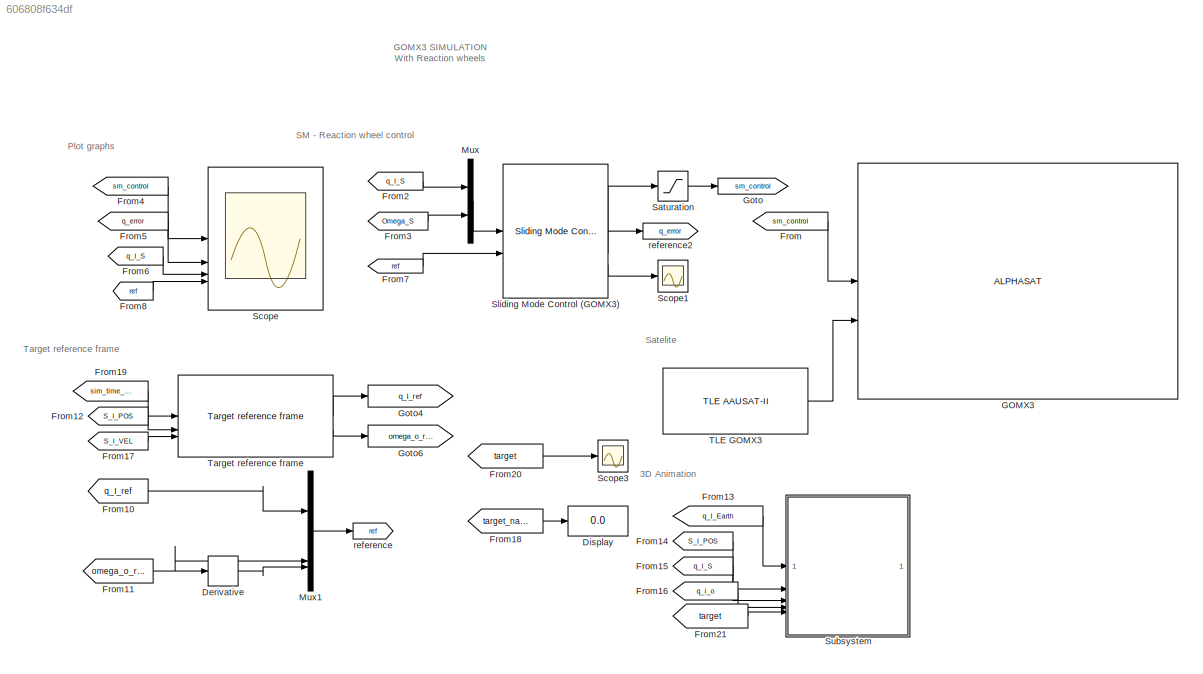
MODEL slx_606808f634df
KIND model
CONFIG AbsTol = auto
CONFIG EnableMultiTasking = on
CONFIG FixedStep = auto
CONFIG MaxStep = auto
CONFIG MinStep = auto
CONFIG RelTol = 1e-3
CONFIG SampleTimeConstraint = Unconstrained
CONFIG SolverName = VariableStepAuto
CONFIG StartTime = 0.0
CONFIG StopTime = 1000
WORKSPACE source: external: MAT-File  (data not in archive)
BLOCK [Derivative] Derivative
BLOCK [Display] Display
  Decimation = 1
BLOCK [From] From
  GotoTag = sm_control
BLOCK [From] From10
  GotoTag = q_I_ref
  TagVisibility = global
BLOCK [From] From11
  GotoTag = omega_o_ref
  TagVisibility = global
BLOCK [From] From12
  GotoTag = S_I_POS
  TagVisibility = global
BLOCK [From] From13
  CloseFcn = tagdialog Close
  GotoTag = q_I_Earth
  TagVisibility = global
BLOCK [From] From14
  GotoTag = S_I_POS
  TagVisibility = global
BLOCK [From] From15
  GotoTag = q_I_S
  TagVisibility = global
BLOCK [From] From16
  GotoTag = q_i_o
  TagVisibility = global
BLOCK [From] From17
  GotoTag = S_I_VEL
  TagVisibility = global
BLOCK [From] From18
  GotoTag = target_name
  TagVisibility = global
BLOCK [From] From19
  GotoTag = sim_time_JD
  TagVisibility = global
BLOCK [From] From2
  GotoTag = q_I_S
  TagVisibility = global
BLOCK [From] From20
  GotoTag = target
  TagVisibility = global
BLOCK [From] From21
  GotoTag = target
  TagVisibility = global
BLOCK [From] From3
  GotoTag = Omega_S
  TagVisibility = global
BLOCK [From] From4
  GotoTag = sm_control
BLOCK [From] From5
  GotoTag = q_error
BLOCK [From] From6
  GotoTag = q_I_S
  TagVisibility = global
BLOCK [From] From7
  GotoTag = ref
BLOCK [From] From8
  GotoTag = ref
BLOCK [Reference] GOMX3  REF=aausat3_lib/ALPHASAT  (lib defined in mdl_4157f6465749, slx_d9305f96731e)
  SourceBlock = aausat3_lib/ALPHASAT
  SourceProductName = AAUSAT3
BLOCK [Goto] Goto
  GotoTag = sm_control
BLOCK [Goto] Goto4
  GotoTag = q_I_ref
  TagVisibility = global
BLOCK [Goto] Goto6
  GotoTag = omega_o_ref
  TagVisibility = global
BLOCK [Mux] Mux
  DisplayOption = bar
  Inputs = 2
BLOCK [Mux] Mux1
  DisplayOption = bar
BLOCK [Saturate] Saturation
  LowerLimit = -23e-6
  UpperLimit = 23e-6
BLOCK [Scope] Scope
  Floating = off
  NumInputPorts = 4
  ScopeSpecificationString = Simulink.scopes.TimeScopeBlockCfg('CurrentConfiguration', extmgr.ConfigurationSet(extmgr.Configuration('Core','General UI',true),extmgr.Configuration('Core','Source UI',true),extmgr.Configuration('Sources','WiredSimulink',true,'DataLoggingVariableName','ScopeData1'),extmgr.Configuration('Visuals','Time Domain',true,'SerializedDisplays',{struct('MinYLimReal','-0.000029','MaxYLimReal','0.000029','YL...<+3778ch>
BLOCK [Scope] Scope1
  Floating = off
  NumInputPorts = 1
  ScopeSpecificationString = Simulink.scopes.TimeScopeBlockCfg('CurrentConfiguration', extmgr.ConfigurationSet(extmgr.Configuration('Core','General UI',true),extmgr.Configuration('Core','Source UI',true),extmgr.Configuration('Sources','WiredSimulink',true,'DataLoggingVariableName','ScopeData1','DataLoggingLimitDataPoints',true,'DataLoggingSaveFormat','Array','DataLoggingDecimation','1','DataLoggingDecimateData',true),extmgr.C...<+1615ch>
BLOCK [Scope] Scope3
  Floating = off
  NumInputPorts = 1
  ScopeSpecificationString = Simulink.scopes.TimeScopeBlockCfg('CurrentConfiguration', extmgr.ConfigurationSet(extmgr.Configuration('Core','General UI',true),extmgr.Configuration('Core','Source UI',true),extmgr.Configuration('Sources','WiredSimulink',true,'DataLoggingVariableName','ScopeData2'),extmgr.Configuration('Visuals','Time Domain',true,'SerializedDisplays',{struct('MinYLimReal','-6465076.1905','MaxYLimReal','4656929.5...<+1884ch>
BLOCK [Reference] Sliding Mode Control (GOMX3)  REF=aausat3_lib/ACS/Sliding Mode Control  (lib defined in mdl_4157f6465749, slx_d9305f96731e)
(GOMX3)
  SourceBlock = aausat3_lib/ACS/Sliding Mode Control\n(GOMX3)
  SourceProductName = AAUSAT3
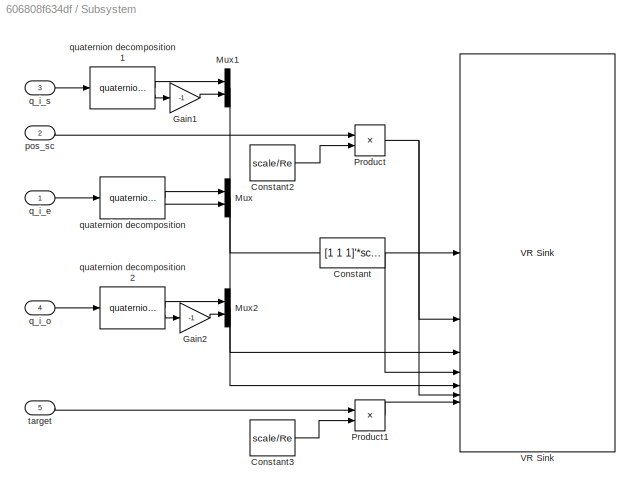
BLOCK [SubSystem] Subsystem
BLOCK [Constant] Subsystem/Constant
  Value = [1 1 1]'*scale
BLOCK [Constant] Subsystem/Constant2
  Value = scale/Re
BLOCK [Constant] Subsystem/Constant3
  Value = scale/Re
BLOCK [Gain] Subsystem/Gain1
  Gain = -1
BLOCK [Gain] Subsystem/Gain2
  Gain = -1
BLOCK [Mux] Subsystem/Mux
  DisplayOption = bar
  Inputs = 2
BLOCK [Mux] Subsystem/Mux1
  DisplayOption = bar
  Inputs = 2
BLOCK [Mux] Subsystem/Mux2
  DisplayOption = bar
  Inputs = 2
BLOCK [Product] Subsystem/Product
BLOCK [Product] Subsystem/Product1
BLOCK [Reference] Subsystem/VR Sink  REF=vrlib/VR Sink
  InstantiateOnLoad = on
  SourceBlock = vrlib/VR Sink
  SourceType = Virtual Reality Sink
BLOCK [Inport] Subsystem/pos_sc
  Port = 2
BLOCK [Inport] Subsystem/q_i_e
BLOCK [Inport] Subsystem/q_i_o
  Port = 4
BLOCK [Inport] Subsystem/q_i_s
  Port = 3
BLOCK [Reference] Subsystem/quaternion decomposition  REF=aausat3_lib/Math Utilities/Quaternion operations/quaternion decomposition  (lib defined in mdl_4157f6465749, slx_d9305f96731e)
  SourceBlock = aausat3_lib/Math Utilities/Quaternion operations/quaternion decomposition
  SourceProductName = AAUSAT3
  SourceType = SubSystem
BLOCK [Reference] Subsystem/quaternion decomposition1  REF=aausat3_lib/Math Utilities/Quaternion operations/quaternion decomposition  (lib defined in mdl_4157f6465749, slx_d9305f96731e)
  SourceBlock = aausat3_lib/Math Utilities/Quaternion operations/quaternion decomposition
  SourceProductName = AAUSAT3
  SourceType = SubSystem
BLOCK [Reference] Subsystem/quaternion decomposition2  REF=aausat3_lib/Math Utilities/Quaternion operations/quaternion decomposition  (lib defined in mdl_4157f6465749, slx_d9305f96731e)
  SourceBlock = aausat3_lib/Math Utilities/Quaternion operations/quaternion decomposition
  SourceProductName = AAUSAT3
  SourceType = SubSystem
BLOCK [Inport] Subsystem/target
  Port = 5
BLOCK [Reference] TLE GOMX3  REF=aausat3_lib/Orbit and Ephemeris/TLE AAUSAT-II  (lib defined in mdl_4157f6465749, slx_d9305f96731e)
  SourceBlock = aausat3_lib/Orbit and Ephemeris/TLE AAUSAT-II
  SourceProductName = AAUSAT3
BLOCK [Reference] Target reference frame  REF=aausat3_lib/Orbit and Ephemeris/Target reference frame  (lib defined in mdl_4157f6465749, slx_d9305f96731e)
  SourceBlock = aausat3_lib/Orbit and Ephemeris/Target reference frame
  SourceProductName = AAUSAT3
BLOCK [Goto] reference
  GotoTag = ref
BLOCK [Goto] reference2
  GotoTag = q_error
ANNOTATION (root): GOMX3 SIMULATION With Reaction wheels
ANNOTATION (root): 3D Animation
ANNOTATION (root): Plot graphs
ANNOTATION (root): SM - Reaction wheel control
ANNOTATION (root): Satelite
ANNOTATION (root): Target reference frame
LINE Derivative:1 -> Mux1:4
LINE From10:1 -> Mux1:1
NET From11:1 -> Derivative:1, Mux1:3
LINE From12:1 -> Target reference frame:2
LINE From13:1 -> Subsystem:1
LINE From14:1 -> Subsystem:2
LINE From15:1 -> Subsystem:3
LINE From16:1 -> Subsystem:4
LINE From17:1 -> Target reference frame:3
LINE From18:1 -> Display:1
LINE From19:1 -> Target reference frame:1
LINE From20:1 -> Scope3:1
LINE From21:1 -> Subsystem:5
LINE From2:1 -> Mux:1
LINE From3:1 -> Mux:2
LINE From4:1 -> Scope:1
LINE From5:1 -> Scope:2
LINE From6:1 -> Scope:3
LINE From7:1 -> Sliding Mode Control (GOMX3):2
LINE From8:1 -> Scope:4
LINE From:1 -> GOMX3:1
LINE Mux1:1 -> reference:1
LINE Mux:1 -> Sliding Mode Control (GOMX3):1
LINE Saturation:1 -> Goto:1
LINE Sliding Mode Control (GOMX3):1 -> Saturation:1
LINE Sliding Mode Control (GOMX3):2 -> reference2:1
LINE Sliding Mode Control (GOMX3):3 -> Scope1:1
LINE Subsystem/Constant2:1 -> Subsystem/Product:2
LINE Subsystem/Constant3:1 -> Subsystem/Product1:2
LINE Subsystem/Constant:1 -> Subsystem/VR Sink:4
LINE Subsystem/Gain1:1 -> Subsystem/Mux1:2
LINE Subsystem/Gain2:1 -> Subsystem/Mux2:2
LINE Subsystem/Mux1:1 -> Subsystem/VR Sink:1
LINE Subsystem/Mux2:1 -> Subsystem/VR Sink:5
LINE Subsystem/Mux:1 -> Subsystem/VR Sink:3
LINE Subsystem/Product1:1 -> Subsystem/VR Sink:7
NET Subsystem/Product:1 -> Subsystem/VR Sink:2, Subsystem/VR Sink:6
LINE Subsystem/pos_sc:1 -> Subsystem/Product:1
LINE Subsystem/q_i_e:1 -> Subsystem/quaternion decomposition:1
LINE Subsystem/q_i_o:1 -> Subsystem/quaternion decomposition2:1
LINE Subsystem/q_i_s:1 -> Subsystem/quaternion decomposition1:1
LINE Subsystem/quaternion decomposition1:1 -> Subsystem/Mux1:1
LINE Subsystem/quaternion decomposition1:2 -> Subsystem/Gain1:1
LINE Subsystem/quaternion decomposition2:1 -> Subsystem/Mux2:1
LINE Subsystem/quaternion decomposition2:2 -> Subsystem/Gain2:1
LINE Subsystem/quaternion decomposition:1 -> Subsystem/Mux:1
LINE Subsystem/quaternion decomposition:2 -> Subsystem/Mux:2
LINE Subsystem/target:1 -> Subsystem/Product1:1
LINE TLE GOMX3:1 -> GOMX3:2
LINE Target reference frame:1 -> Goto4:1
LINE Target reference frame:2 -> Goto6:1
note: NET lines group one-source signal fan-out (src -> all destinations, sorted); 1:1 wires keep LINE
